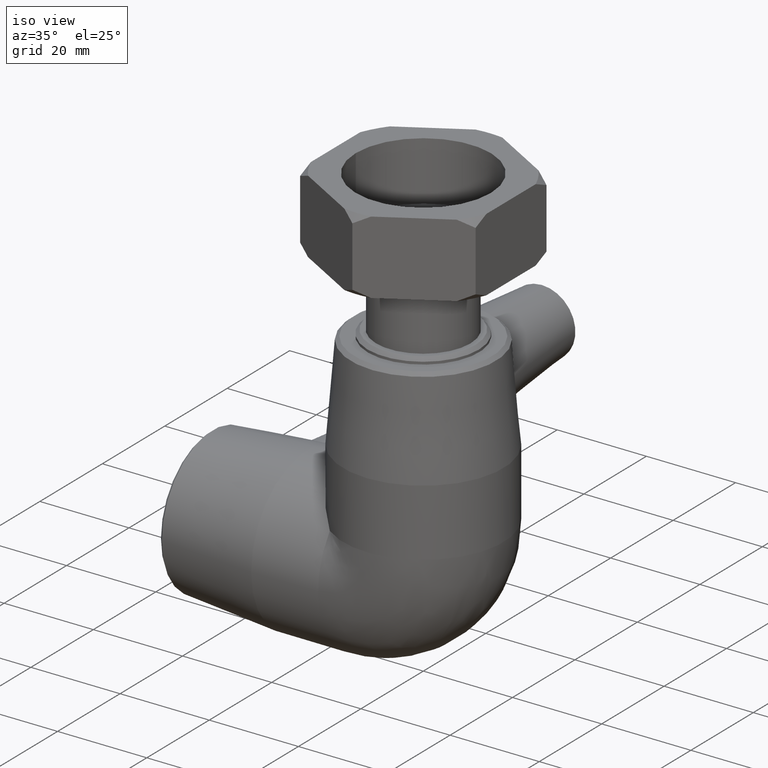
[diagram: clean part render]
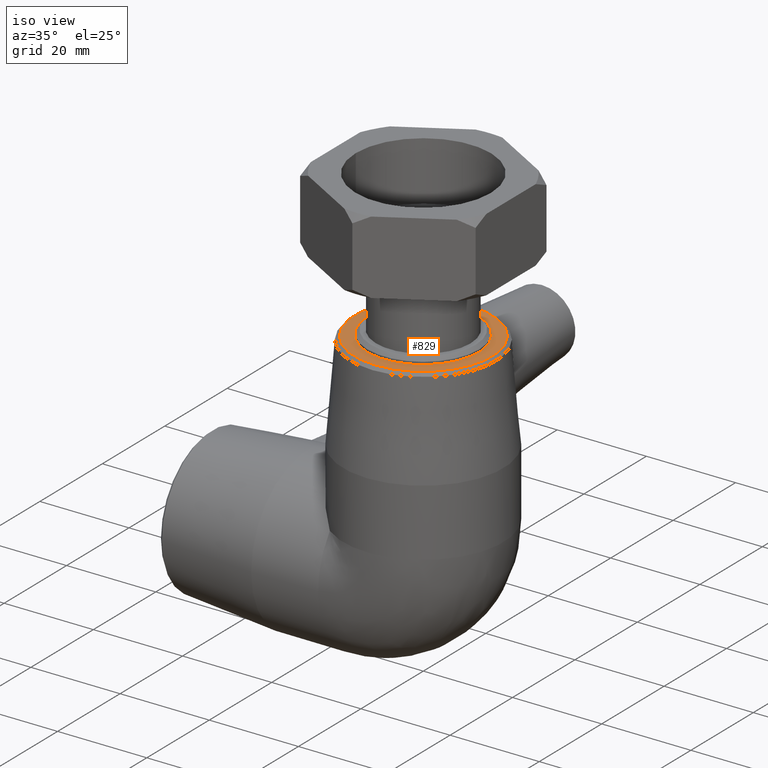
[diagram: same view with one face highlighted and labeled with its STEP entity id]
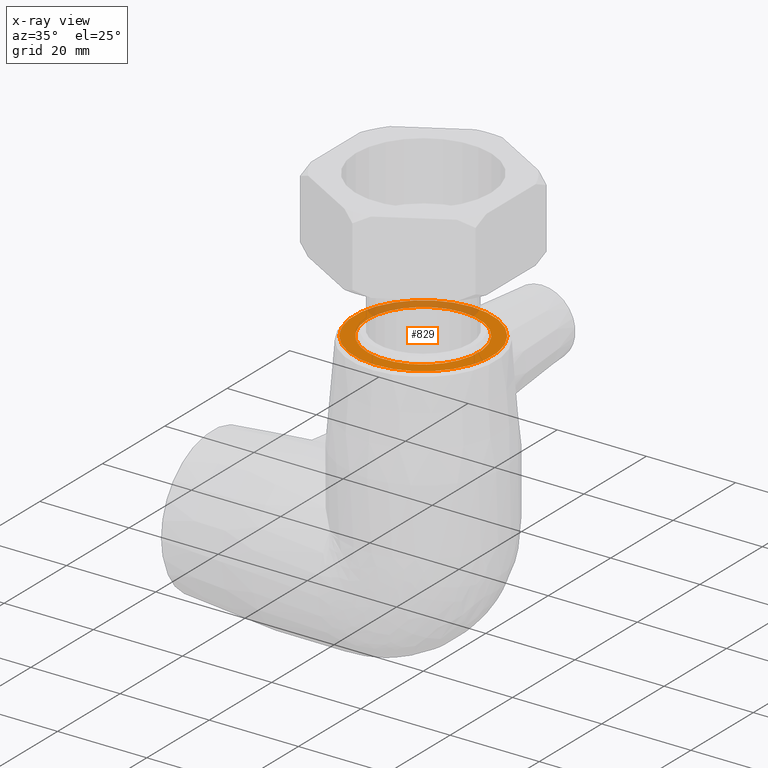
[diagram: x-ray of the same camera — body ghosted, the highlighted face saturated]
A machine part, iso view. The second image highlights one B-rep face of the part: STEP entity #829.
The next image is the same camera in x-ray: the body ghosted, the highlighted face saturated — about 25% of this face is hidden behind the body in this view.
In plain terms, the highlighted planar face has unit normal (-0, 0, 1).
Its self-contained STEP definition (entity closure, byte-faithful):
#110=PLANE('',#925);
#138=FACE_BOUND('',#277,.T.);
#198=FACE_OUTER_BOUND('',#276,.T.);
#276=EDGE_LOOP('',(#706));
#277=EDGE_LOOP('',(#707));
#354=CIRCLE('',#908,12.5);
#362=CIRCLE('',#923,15.45);
#432=VERTEX_POINT('',#1420);
#441=VERTEX_POINT('',#1482);
#530=EDGE_CURVE('',#432,#432,#354,.T.);
#539=EDGE_CURVE('',#441,#441,#362,.T.);
#706=ORIENTED_EDGE('',*,*,#539,.F.);
#707=ORIENTED_EDGE('',*,*,#530,.T.);
#829=ADVANCED_FACE('',(#198,#138),#110,.T.);
#908=AXIS2_PLACEMENT_3D('',#1421,#1091,#1092);
#923=AXIS2_PLACEMENT_3D('',#1483,#1121,#1122);
#925=AXIS2_PLACEMENT_3D('',#1486,#1125,#1126);
#1091=DIRECTION('center_axis',(6.12323399573677E-17,-2.89120579329468E-18,
-1.));
#1092=DIRECTION('ref_axis',(-1.,0.,-6.12323399573677E-17));
#1121=DIRECTION('center_axis',(6.12323399573677E-17,-2.89120579329468E-18,
-1.));
#1122=DIRECTION('ref_axis',(-1.77035296021731E-34,-1.,2.89120579329468E-18));
#1125=DIRECTION('center_axis',(-6.12323399573677E-17,2.89120579329468E-18,
1.));
#1126=DIRECTION('ref_axis',(1.,0.,0.));
#1420=CARTESIAN_POINT('',(-2.93915231795365E-15,12.5,48.));
#1421=CARTESIAN_POINT('Origin',(-2.93915231795365E-15,-2.69630192214213E-32,
48.));
#1482=CARTESIAN_POINT('',(-1.04707301327099E-15,15.45,48.));
#1483=CARTESIAN_POINT('Origin',(-2.93915231795365E-15,2.88889491658085E-33,
48.));
#1486=CARTESIAN_POINT('Origin',(-2.93915231795365E-15,16.2,48.));